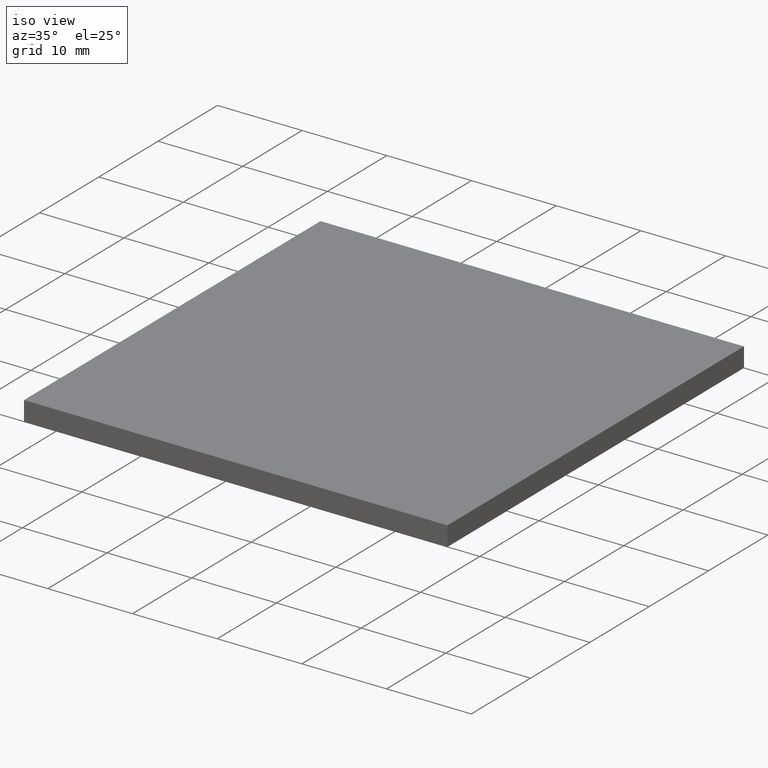
[diagram: clean part render]
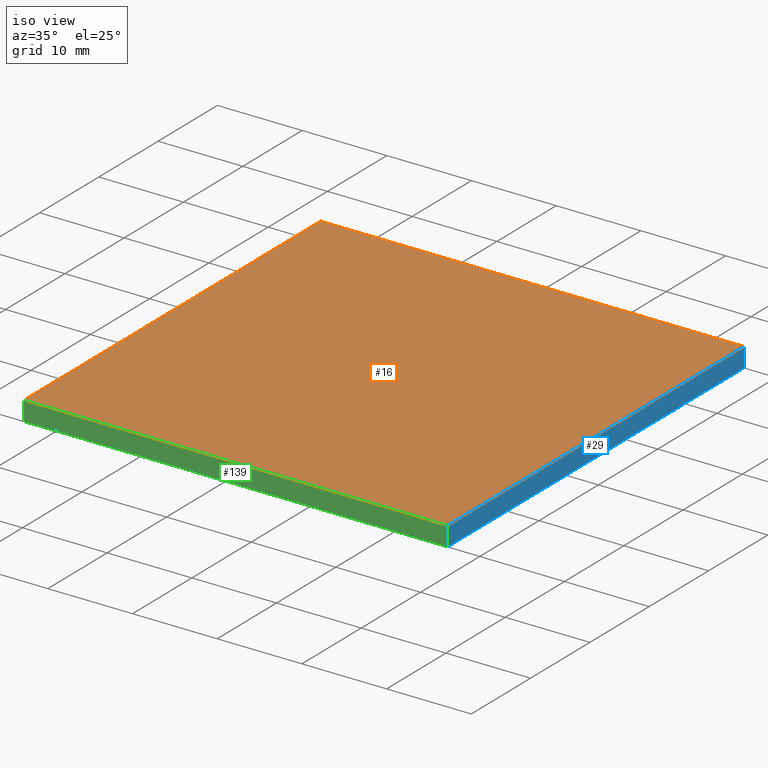
[diagram: same view with three faces highlighted in distinct colors, each labeled with its STEP entity id]
A machine part, iso view with three faces highlighted in distinct colors.
Their STEP definitions:

[orange] entity #16 — the highlighted planar face has unit normal (-0, 0, 1).
#3 = EDGE_CURVE ( 'NONE', #104, #160, #99, .T. ) ;
#13 = VECTOR ( 'NONE', #76, 1000.000000000000000 ) ;
#16 = ADVANCED_FACE ( 'NONE', ( #158 ), #61, .T. ) ;
#19 = CARTESIAN_POINT ( 'NONE',  ( 177.4958715517701900, 148.1264836690531900, 2.299999999999999800 ) ) ;
#20 = CARTESIAN_POINT ( 'NONE',  ( 0.0000000000000000000, 0.0000000000000000000, 2.299999999999999800 ) ) ;
#21 = CARTESIAN_POINT ( 'NONE',  ( 227.4958715517701600, 98.12648366905320100, 2.299999999999999800 ) ) ;
#22 = VECTOR ( 'NONE', #117, 1000.000000000000000 ) ;
#23 = AXIS2_PLACEMENT_3D ( 'NONE', #20, #96, #192 ) ;
#34 = CARTESIAN_POINT ( 'NONE',  ( 177.4958715517701900, 148.1264836690531900, 2.299999999999999800 ) ) ;
#37 = ORIENTED_EDGE ( 'NONE', *, *, #3, .T. ) ;
#40 = CARTESIAN_POINT ( 'NONE',  ( 177.4958715517701600, 98.12648366905320100, 2.299999999999999800 ) ) ;
#55 = VECTOR ( 'NONE', #167, 1000.000000000000000 ) ;
#60 = LINE ( 'NONE', #79, #55 ) ;
#61 = PLANE ( 'NONE',  #23 ) ;
#62 = EDGE_CURVE ( 'NONE', #162, #104, #193, .T. ) ;
#69 = ORIENTED_EDGE ( 'NONE', *, *, #174, .T. ) ;
#70 = LINE ( 'NONE', #114, #22 ) ;
#72 = ORIENTED_EDGE ( 'NONE', *, *, #62, .T. ) ;
#76 = DIRECTION ( 'NONE',  ( -1.000000000000000000, -0.0000000000000000000, -0.0000000000000000000 ) ) ;
#77 = VECTOR ( 'NONE', #146, 1000.000000000000000 ) ;
#79 = CARTESIAN_POINT ( 'NONE',  ( 177.4958715517701600, 98.12648366905320100, 2.299999999999999800 ) ) ;
#86 = ORIENTED_EDGE ( 'NONE', *, *, #183, .T. ) ;
#96 = DIRECTION ( 'NONE',  ( -0.0000000000000000000, 0.0000000000000000000, 1.000000000000000000 ) ) ;
#97 = CARTESIAN_POINT ( 'NONE',  ( 227.4958715517701400, 148.1264836690531900, 2.299999999999999800 ) ) ;
#99 = LINE ( 'NONE', #125, #77 ) ;
#104 = VERTEX_POINT ( 'NONE', #34 ) ;
#114 = CARTESIAN_POINT ( 'NONE',  ( 227.4958715517701400, 148.1264836690531900, 2.299999999999999800 ) ) ;
#117 = DIRECTION ( 'NONE',  ( -5.551115123125785700E-016, 1.000000000000000000, -0.0000000000000000000 ) ) ;
#125 = CARTESIAN_POINT ( 'NONE',  ( 177.4958715517701900, 148.1264836690531900, 2.299999999999999800 ) ) ;
#127 = VERTEX_POINT ( 'NONE', #21 ) ;
#138 = EDGE_LOOP ( 'NONE', ( #37, #69, #86, #72 ) ) ;
#146 = DIRECTION ( 'NONE',  ( -5.551115123125785700E-016, -1.000000000000000000, 0.0000000000000000000 ) ) ;
#158 = FACE_OUTER_BOUND ( 'NONE', #138, .T. ) ;
#160 = VERTEX_POINT ( 'NONE', #40 ) ;
#162 = VERTEX_POINT ( 'NONE', #97 ) ;
#167 = DIRECTION ( 'NONE',  ( 1.000000000000000000, 0.0000000000000000000, 0.0000000000000000000 ) ) ;
#174 = EDGE_CURVE ( 'NONE', #160, #127, #60, .T. ) ;
#183 = EDGE_CURVE ( 'NONE', #127, #162, #70, .T. ) ;
#192 = DIRECTION ( 'NONE',  ( 1.000000000000000000, 0.0000000000000000000, 0.0000000000000000000 ) ) ;
#193 = LINE ( 'NONE', #19, #13 ) ;

[blue] entity #29 — the highlighted planar face has unit normal (-1, -0, 0).
#21 = CARTESIAN_POINT ( 'NONE',  ( 227.4958715517701600, 98.12648366905320100, 2.299999999999999800 ) ) ;
#22 = VECTOR ( 'NONE', #117, 1000.000000000000000 ) ;
#25 = DIRECTION ( 'NONE',  ( -0.0000000000000000000, -0.0000000000000000000, -1.000000000000000000 ) ) ;
#27 = AXIS2_PLACEMENT_3D ( 'NONE', #111, #195, #50 ) ;
#29 = ADVANCED_FACE ( 'NONE', ( #57 ), #161, .F. ) ;
#36 = LINE ( 'NONE', #93, #126 ) ;
#38 = DIRECTION ( 'NONE',  ( -0.0000000000000000000, -0.0000000000000000000, -1.000000000000000000 ) ) ;
#50 = DIRECTION ( 'NONE',  ( 5.551115123125785700E-016, -1.000000000000000000, 0.0000000000000000000 ) ) ;
#54 = ORIENTED_EDGE ( 'NONE', *, *, #128, .T. ) ;
#57 = FACE_OUTER_BOUND ( 'NONE', #149, .T. ) ;
#63 = ORIENTED_EDGE ( 'NONE', *, *, #163, .T. ) ;
#70 = LINE ( 'NONE', #114, #22 ) ;
#71 = EDGE_CURVE ( 'NONE', #162, #122, #36, .T. ) ;
#93 = CARTESIAN_POINT ( 'NONE',  ( 227.4958715517701400, 148.1264836690531900, 2.299999999999999800 ) ) ;
#94 = LINE ( 'NONE', #130, #182 ) ;
#97 = CARTESIAN_POINT ( 'NONE',  ( 227.4958715517701400, 148.1264836690531900, 2.299999999999999800 ) ) ;
#111 = CARTESIAN_POINT ( 'NONE',  ( 227.4958715517701400, 148.1264836690531900, 2.299999999999999800 ) ) ;
#114 = CARTESIAN_POINT ( 'NONE',  ( 227.4958715517701400, 148.1264836690531900, 2.299999999999999800 ) ) ;
#117 = DIRECTION ( 'NONE',  ( -5.551115123125785700E-016, 1.000000000000000000, -0.0000000000000000000 ) ) ;
#122 = VERTEX_POINT ( 'NONE', #147 ) ;
#126 = VECTOR ( 'NONE', #38, 1000.000000000000000 ) ;
#127 = VERTEX_POINT ( 'NONE', #21 ) ;
#128 = EDGE_CURVE ( 'NONE', #127, #171, #202, .T. ) ;
#130 = CARTESIAN_POINT ( 'NONE',  ( 227.4958715517701400, 148.1264836690531900, 0.0000000000000000000 ) ) ;
#147 = CARTESIAN_POINT ( 'NONE',  ( 227.4958715517701400, 148.1264836690531900, 0.0000000000000000000 ) ) ;
#149 = EDGE_LOOP ( 'NONE', ( #63, #178, #201, #54 ) ) ;
#157 = VECTOR ( 'NONE', #25, 1000.000000000000000 ) ;
#161 = PLANE ( 'NONE',  #27 ) ;
#162 = VERTEX_POINT ( 'NONE', #97 ) ;
#163 = EDGE_CURVE ( 'NONE', #171, #122, #94, .T. ) ;
#169 = CARTESIAN_POINT ( 'NONE',  ( 227.4958715517701600, 98.12648366905320100, 2.299999999999999800 ) ) ;
#170 = CARTESIAN_POINT ( 'NONE',  ( 227.4958715517701600, 98.12648366905320100, 0.0000000000000000000 ) ) ;
#171 = VERTEX_POINT ( 'NONE', #170 ) ;
#178 = ORIENTED_EDGE ( 'NONE', *, *, #71, .F. ) ;
#180 = DIRECTION ( 'NONE',  ( -5.551115123125785700E-016, 1.000000000000000000, -0.0000000000000000000 ) ) ;
#182 = VECTOR ( 'NONE', #180, 1000.000000000000000 ) ;
#183 = EDGE_CURVE ( 'NONE', #127, #162, #70, .T. ) ;
#195 = DIRECTION ( 'NONE',  ( -1.000000000000000000, -5.551115123125785700E-016, 0.0000000000000000000 ) ) ;
#201 = ORIENTED_EDGE ( 'NONE', *, *, #183, .F. ) ;
#202 = LINE ( 'NONE', #169, #157 ) ;

[green] entity #139 — the highlighted planar face has unit normal (0, 1, 0).
#12 = CARTESIAN_POINT ( 'NONE',  ( 177.4958715517701600, 98.12648366905320100, 0.0000000000000000000 ) ) ;
#21 = CARTESIAN_POINT ( 'NONE',  ( 227.4958715517701600, 98.12648366905320100, 2.299999999999999800 ) ) ;
#25 = DIRECTION ( 'NONE',  ( -0.0000000000000000000, -0.0000000000000000000, -1.000000000000000000 ) ) ;
#26 = PLANE ( 'NONE',  #155 ) ;
#30 = LINE ( 'NONE', #113, #118 ) ;
#40 = CARTESIAN_POINT ( 'NONE',  ( 177.4958715517701600, 98.12648366905320100, 2.299999999999999800 ) ) ;
#43 = VERTEX_POINT ( 'NONE', #165 ) ;
#55 = VECTOR ( 'NONE', #167, 1000.000000000000000 ) ;
#60 = LINE ( 'NONE', #79, #55 ) ;
#67 = CARTESIAN_POINT ( 'NONE',  ( 177.4958715517701600, 98.12648366905320100, 2.299999999999999800 ) ) ;
#79 = CARTESIAN_POINT ( 'NONE',  ( 177.4958715517701600, 98.12648366905320100, 2.299999999999999800 ) ) ;
#88 = VECTOR ( 'NONE', #132, 1000.000000000000000 ) ;
#95 = ORIENTED_EDGE ( 'NONE', *, *, #128, .F. ) ;
#98 = DIRECTION ( 'NONE',  ( 0.0000000000000000000, 1.000000000000000000, 0.0000000000000000000 ) ) ;
#112 = EDGE_LOOP ( 'NONE', ( #153, #95, #189, #136 ) ) ;
#113 = CARTESIAN_POINT ( 'NONE',  ( 177.4958715517701600, 98.12648366905320100, 2.299999999999999800 ) ) ;
#118 = VECTOR ( 'NONE', #133, 1000.000000000000000 ) ;
#120 = EDGE_CURVE ( 'NONE', #160, #43, #30, .T. ) ;
#127 = VERTEX_POINT ( 'NONE', #21 ) ;
#128 = EDGE_CURVE ( 'NONE', #127, #171, #202, .T. ) ;
#132 = DIRECTION ( 'NONE',  ( 1.000000000000000000, 0.0000000000000000000, 0.0000000000000000000 ) ) ;
#133 = DIRECTION ( 'NONE',  ( -0.0000000000000000000, -0.0000000000000000000, -1.000000000000000000 ) ) ;
#136 = ORIENTED_EDGE ( 'NONE', *, *, #120, .T. ) ;
#139 = ADVANCED_FACE ( 'NONE', ( #184 ), #26, .F. ) ;
#140 = EDGE_CURVE ( 'NONE', #43, #171, #179, .T. ) ;
#153 = ORIENTED_EDGE ( 'NONE', *, *, #140, .T. ) ;
#155 = AXIS2_PLACEMENT_3D ( 'NONE', #67, #98, #197 ) ;
#157 = VECTOR ( 'NONE', #25, 1000.000000000000000 ) ;
#160 = VERTEX_POINT ( 'NONE', #40 ) ;
#165 = CARTESIAN_POINT ( 'NONE',  ( 177.4958715517701600, 98.12648366905320100, 0.0000000000000000000 ) ) ;
#167 = DIRECTION ( 'NONE',  ( 1.000000000000000000, 0.0000000000000000000, 0.0000000000000000000 ) ) ;
#169 = CARTESIAN_POINT ( 'NONE',  ( 227.4958715517701600, 98.12648366905320100, 2.299999999999999800 ) ) ;
#170 = CARTESIAN_POINT ( 'NONE',  ( 227.4958715517701600, 98.12648366905320100, 0.0000000000000000000 ) ) ;
#171 = VERTEX_POINT ( 'NONE', #170 ) ;
#174 = EDGE_CURVE ( 'NONE', #160, #127, #60, .T. ) ;
#179 = LINE ( 'NONE', #12, #88 ) ;
#184 = FACE_OUTER_BOUND ( 'NONE', #112, .T. ) ;
#189 = ORIENTED_EDGE ( 'NONE', *, *, #174, .F. ) ;
#197 = DIRECTION ( 'NONE',  ( 0.0000000000000000000, -0.0000000000000000000, 1.000000000000000000 ) ) ;
#202 = LINE ( 'NONE', #169, #157 ) ;